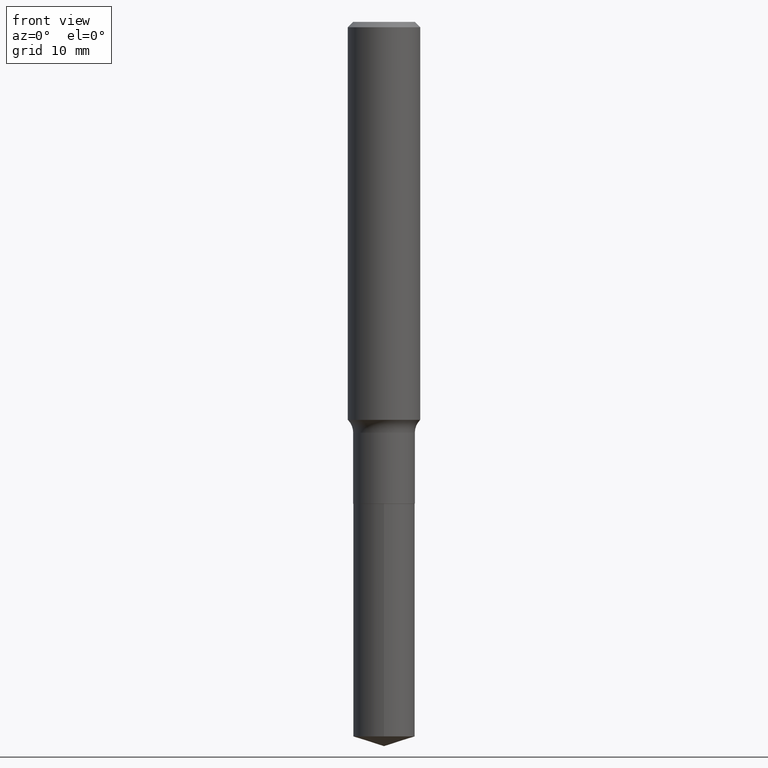
[diagram: clean part render]
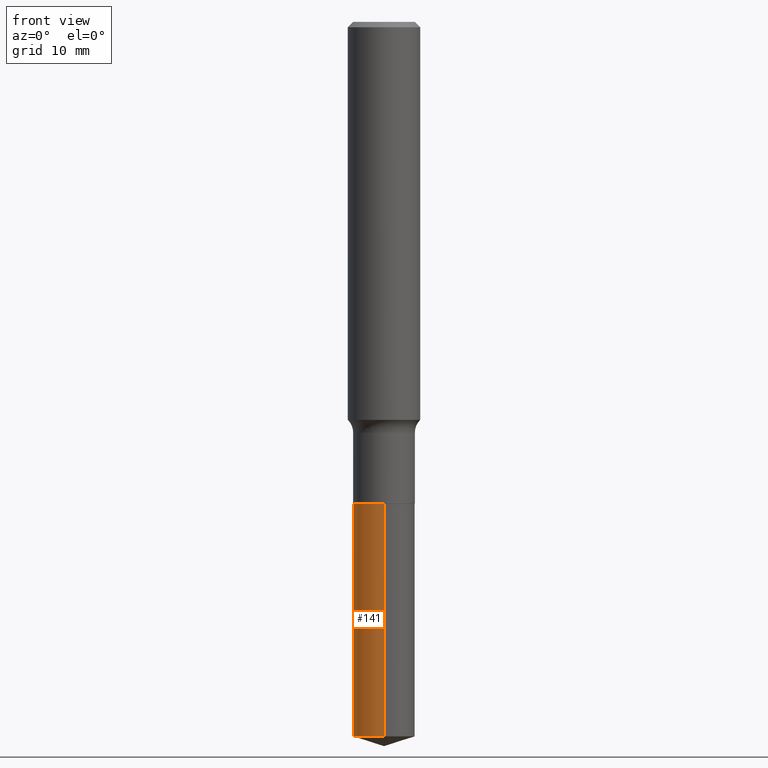
[diagram: same view with one face highlighted and labeled with its STEP entity id]
A machine part, front view. The second image highlights one B-rep face of the part: STEP entity #141.
In plain terms, the highlighted cylindrical surface (edge-blend (fillet) strip) has radius 3.3782 mm, axis along (-0, 0, 1).
Its self-contained STEP definition (entity closure, byte-faithful):
#7 = LINE ( 'NONE', #467, #10 ) ;
#10 = VECTOR ( 'NONE', #274, 39.37007874015748143 ) ;
#38 = VERTEX_POINT ( 'NONE', #226 ) ;
#43 = DIRECTION ( 'NONE',  ( -2.445397776854070034E-29, 3.491583056887971408E-15, 1.000000000000000000 ) ) ;
#100 = VERTEX_POINT ( 'NONE', #341 ) ;
#105 = CARTESIAN_POINT ( 'NONE',  ( 9.450218385610086339E-16, 0.1329999999999927351, -2.078500000000000902 ) ) ;
#122 = CARTESIAN_POINT ( 'NONE',  ( 5.082906913655807152E-29, -7.257043962785479847E-15, -2.078500000000000458 ) ) ;
#141 = ADVANCED_FACE ( 'NONE', ( #430 ), #194, .T. ) ;
#179 = EDGE_CURVE ( 'NONE', #328, #284, #338, .T. ) ;
#185 = EDGE_CURVE ( 'NONE', #38, #328, #7, .T. ) ;
#187 = ORIENTED_EDGE ( 'NONE', *, *, #185, .F. ) ;
#194 = CYLINDRICAL_SURFACE ( 'NONE', #449, 0.1330000000000000071 ) ;
#195 = AXIS2_PLACEMENT_3D ( 'NONE', #310, #429, #347 ) ;
#226 = CARTESIAN_POINT ( 'NONE',  ( 9.450218385610088311E-16, 0.1329999999999892657, -3.083065261079096064 ) ) ;
#244 = ORIENTED_EDGE ( 'NONE', *, *, #288, .T. ) ;
#246 = EDGE_LOOP ( 'NONE', ( #187, #442, #244, #326 ) ) ;
#256 = CARTESIAN_POINT ( 'NONE',  ( -9.287340361322225436E-16, -0.1330000000000072513, -2.078499999999999570 ) ) ;
#260 = DIRECTION ( 'NONE',  ( -6.982962677686265922E-15, -1.000000000000000000, 4.108042095735734288E-15 ) ) ;
#274 = DIRECTION ( 'NONE',  ( -2.445397776854070034E-29, 3.491583056887971803E-15, 1.000000000000000000 ) ) ;
#284 = VERTEX_POINT ( 'NONE', #256 ) ;
#288 = EDGE_CURVE ( 'NONE', #100, #284, #445, .T. ) ;
#296 = CARTESIAN_POINT ( 'NONE',  ( -9.287340361322225436E-16, -0.1330000000000072513, -2.078499999999999570 ) ) ;
#310 = CARTESIAN_POINT ( 'NONE',  ( 5.082906913655807152E-29, -7.257043962785479847E-15, -2.078500000000000458 ) ) ;
#318 = DIRECTION ( 'NONE',  ( -2.445397776854070034E-29, 3.491583056887971408E-15, 1.000000000000000000 ) ) ;
#323 = CIRCLE ( 'NONE', #458, 0.1330000000000000071 ) ;
#326 = ORIENTED_EDGE ( 'NONE', *, *, #179, .F. ) ;
#328 = VERTEX_POINT ( 'NONE', #105 ) ;
#338 = CIRCLE ( 'NONE', #195, 0.1330000000000000071 ) ;
#341 = CARTESIAN_POINT ( 'NONE',  ( -9.287340361321982862E-16, -0.1330000000000108040, -3.083065261079094732 ) ) ;
#347 = DIRECTION ( 'NONE',  ( -6.982962677686265922E-15, -1.000000000000000000, 4.108042095735734288E-15 ) ) ;
#348 = DIRECTION ( 'NONE',  ( -6.982962677686265922E-15, -1.000000000000000000, 4.108042095735734288E-15 ) ) ;
#355 = EDGE_CURVE ( 'NONE', #38, #100, #323, .T. ) ;
#365 = VECTOR ( 'NONE', #399, 39.37007874015748143 ) ;
#399 = DIRECTION ( 'NONE',  ( -2.445397776854070034E-29, 3.491583056887971803E-15, 1.000000000000000000 ) ) ;
#429 = DIRECTION ( 'NONE',  ( -2.445397776854070034E-29, 3.491583056887971408E-15, 1.000000000000000000 ) ) ;
#430 = FACE_OUTER_BOUND ( 'NONE', #246, .T. ) ;
#442 = ORIENTED_EDGE ( 'NONE', *, *, #355, .T. ) ;
#445 = LINE ( 'NONE', #296, #365 ) ;
#449 = AXIS2_PLACEMENT_3D ( 'NONE', #122, #43, #348 ) ;
#458 = AXIS2_PLACEMENT_3D ( 'NONE', #469, #318, #260 ) ;
#467 = CARTESIAN_POINT ( 'NONE',  ( 9.450218385609839820E-16, 0.1329999999999927351, -2.078500000000000902 ) ) ;
#469 = CARTESIAN_POINT ( 'NONE',  ( 7.539468569803454175E-29, -1.076456700790748911E-14, -3.083065261079095176 ) ) ;